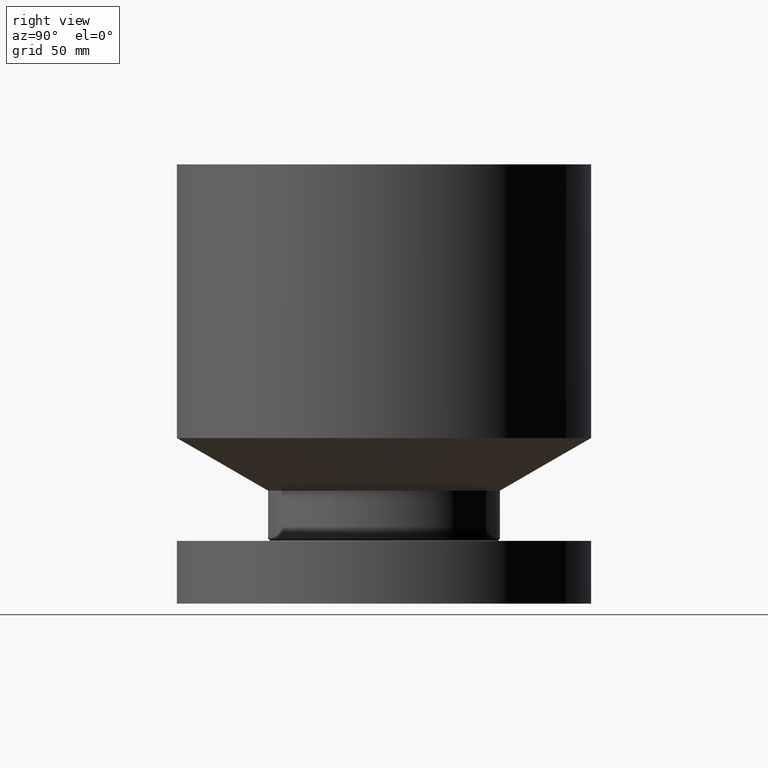
[diagram: clean part render]
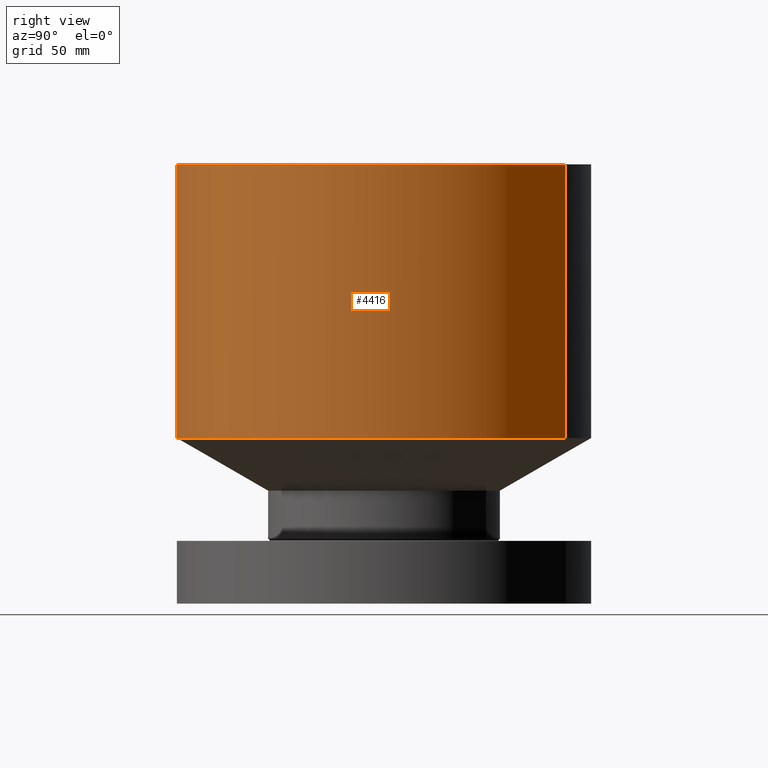
[diagram: same view with one face highlighted and labeled with its STEP entity id]
A machine part, right view. The second image highlights one B-rep face of the part: STEP entity #4416.
In plain terms, the highlighted cylindrical surface (partial cylindrical patch) has radius 104.775 mm, axis along (0, 0, -1).
Its self-contained STEP definition (entity closure, byte-faithful):
#285=AXIS2_PLACEMENT_3D('Cylinder Axis2P3D',#282,#283,#284) ;
#1519=AXIS2_PLACEMENT_3D('Circle Axis2P3D',#1517,#1518,$) ;
#4400=AXIS2_PLACEMENT_3D('Circle Axis2P3D',#4398,#4399,$) ;
#282=CARTESIAN_POINT('Axis2P3D Location',(0.,0.,4.25000000002)) ;
#1514=CARTESIAN_POINT('Vertex',(1.97763034675,3.62002806781,3.29789073859)) ;
#1517=CARTESIAN_POINT('Axis2P3D Location',(0.,0.,3.29789073859)) ;
#1521=CARTESIAN_POINT('Vertex',(-1.97763034675,-3.62002806781,3.29789073859)) ;
#4391=CARTESIAN_POINT('Line Origine',(1.97763034675,3.62002806781,6.02394536931)) ;
#4395=CARTESIAN_POINT('Vertex',(1.97763034675,3.62002806781,8.75000000004)) ;
#4398=CARTESIAN_POINT('Axis2P3D Location',(0.,0.,8.75000000003)) ;
#4402=CARTESIAN_POINT('Vertex',(-1.97763034675,-3.62002806781,8.75000000004)) ;
#4405=CARTESIAN_POINT('Line Origine',(-1.97763034675,-3.62002806781,6.02394536931)) ;
#283=DIRECTION('Axis2P3D Direction',(0.,0.,-0.0393700787402)) ;
#284=DIRECTION('Axis2P3D XDirection',(-0.0188750212049,-0.0345504945626,0.)) ;
#1518=DIRECTION('Axis2P3D Direction',(-0.,0.,0.0393700787402)) ;
#4392=DIRECTION('Vector Direction',(0.,0.,-0.0393700787402)) ;
#4399=DIRECTION('Axis2P3D Direction',(0.,0.,-0.0393700787402)) ;
#4406=DIRECTION('Vector Direction',(0.,0.,-0.0393700787402)) ;
#4393=VECTOR('Line Direction',#4392,0.0393700787402) ;
#4407=VECTOR('Line Direction',#4406,0.0393700787402) ;
#4411=ORIENTED_EDGE('',*,*,#1523,.F.) ;
#4412=ORIENTED_EDGE('',*,*,#4397,.T.) ;
#4413=ORIENTED_EDGE('',*,*,#4404,.T.) ;
#4414=ORIENTED_EDGE('',*,*,#4409,.F.) ;
#4416=ADVANCED_FACE('PartBody',(#4415),#286,.T.) ;
#1520=CIRCLE('generated circle',#1519,4.12500000002) ;
#4401=CIRCLE('generated circle',#4400,4.12500000002) ;
#286=CYLINDRICAL_SURFACE('generated cylinder',#285,4.12500000002) ;
#1523=EDGE_CURVE('',#1515,#1522,#1520,.F.) ;
#4397=EDGE_CURVE('',#1515,#4396,#4394,.F.) ;
#4404=EDGE_CURVE('',#4396,#4403,#4401,.T.) ;
#4409=EDGE_CURVE('',#1522,#4403,#4408,.F.) ;
#4410=EDGE_LOOP('',(#4411,#4412,#4413,#4414)) ;
#4415=FACE_OUTER_BOUND('',#4410,.T.) ;
#4394=LINE('Line',#4391,#4393) ;
#4408=LINE('Line',#4405,#4407) ;
#1515=VERTEX_POINT('',#1514) ;
#1522=VERTEX_POINT('',#1521) ;
#4396=VERTEX_POINT('',#4395) ;
#4403=VERTEX_POINT('',#4402) ;